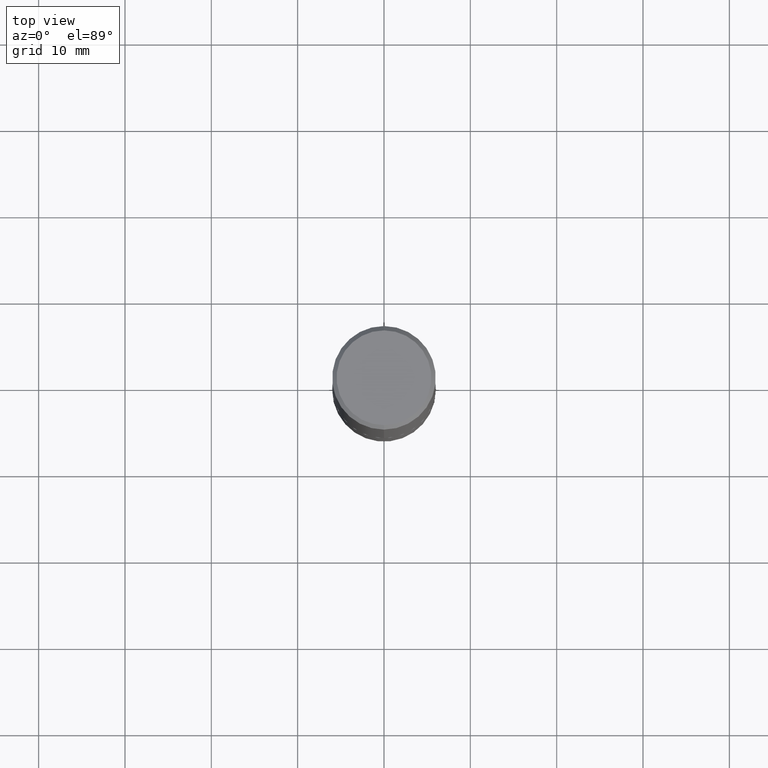
[diagram: clean part render]
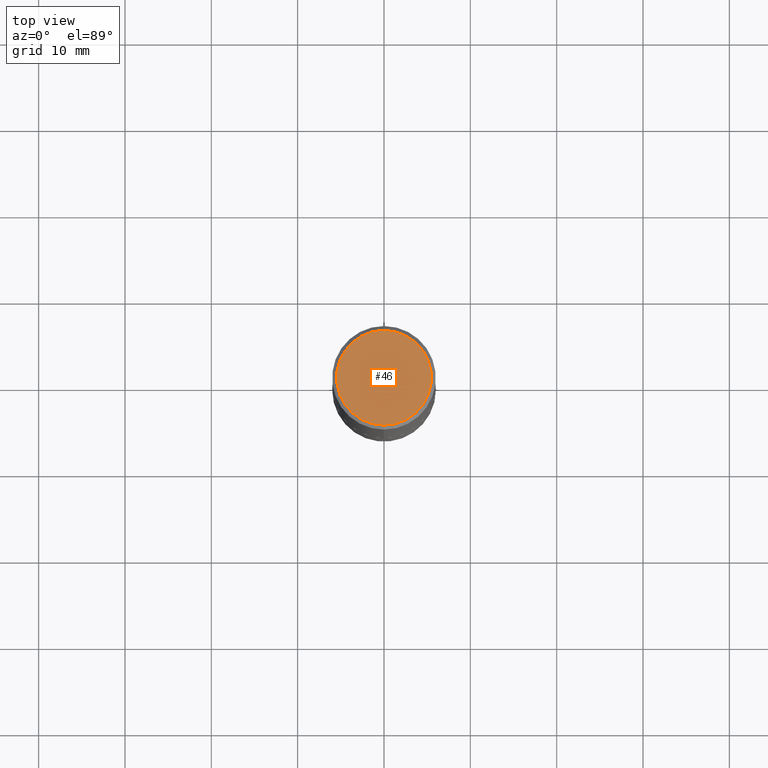
[diagram: same view with one face highlighted and labeled with its STEP entity id]
A machine part, top view. The second image highlights one B-rep face of the part: STEP entity #46.
In plain terms, the highlighted planar face has unit normal (0, -0, -1).
Its self-contained STEP definition (entity closure, byte-faithful):
#13 = FACE_OUTER_BOUND ( 'NONE', #306, .T. ) ;
#23 = DIRECTION ( 'NONE',  ( -6.982962677686265922E-15, -1.000000000000000000, 3.494732472144603410E-15 ) ) ;
#25 = CARTESIAN_POINT ( 'NONE',  ( 7.178715118017931868E-45, -1.026837905226585320E-30, -2.938244667971532280E-16 ) ) ;
#40 = VERTEX_POINT ( 'NONE', #304 ) ;
#46 = ADVANCED_FACE ( 'NONE', ( #13 ), #181, .F. ) ;
#62 = AXIS2_PLACEMENT_3D ( 'NONE', #25, #415, #347 ) ;
#81 = EDGE_CURVE ( 'NONE', #40, #220, #189, .T. ) ;
#86 = EDGE_CURVE ( 'NONE', #220, #40, #147, .T. ) ;
#115 = DIRECTION ( 'NONE',  ( 6.982962677686265922E-15, 1.000000000000000000, -3.494732472144603016E-15 ) ) ;
#145 = DIRECTION ( 'NONE',  ( 2.443198551934710321E-29, -3.494732472144603016E-15, -1.000000000000000000 ) ) ;
#147 = CIRCLE ( 'NONE', #62, 0.2162000000000002808 ) ;
#181 = PLANE ( 'NONE',  #268 ) ;
#189 = CIRCLE ( 'NONE', #341, 0.2162000000000002808 ) ;
#192 = DIRECTION ( 'NONE',  ( -2.443198551934710321E-29, 3.494732472144603410E-15, 1.000000000000000000 ) ) ;
#217 = CARTESIAN_POINT ( 'NONE',  ( 7.178715118017931868E-45, -1.026837905226585320E-30, -2.938244667971532280E-16 ) ) ;
#220 = VERTEX_POINT ( 'NONE', #382 ) ;
#263 = ORIENTED_EDGE ( 'NONE', *, *, #81, .T. ) ;
#268 = AXIS2_PLACEMENT_3D ( 'NONE', #338, #145, #115 ) ;
#304 = CARTESIAN_POINT ( 'NONE',  ( -1.551844647095920733E-15, -0.2162000000000002808, 4.617366936805109079E-16 ) ) ;
#306 = EDGE_LOOP ( 'NONE', ( #376, #263 ) ) ;
#338 = CARTESIAN_POINT ( 'NONE',  ( 1.509716530915772690E-15, 0.2162000000000002808, -9.024733938762408486E-16 ) ) ;
#341 = AXIS2_PLACEMENT_3D ( 'NONE', #217, #192, #23 ) ;
#347 = DIRECTION ( 'NONE',  ( -6.982962677686265922E-15, -1.000000000000000000, 3.494732472144603410E-15 ) ) ;
#376 = ORIENTED_EDGE ( 'NONE', *, *, #86, .T. ) ;
#382 = CARTESIAN_POINT ( 'NONE',  ( 1.579546157692634608E-15, 0.2162000000000002808, -1.049385627274817561E-15 ) ) ;
#415 = DIRECTION ( 'NONE',  ( -2.443198551934710321E-29, 3.494732472144603410E-15, 1.000000000000000000 ) ) ;